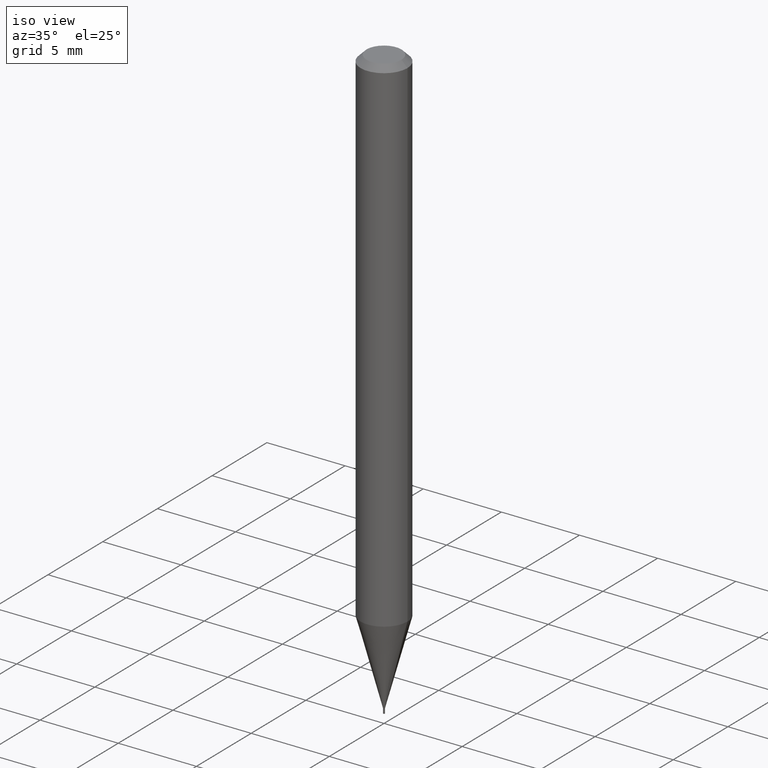
[diagram: clean part render]
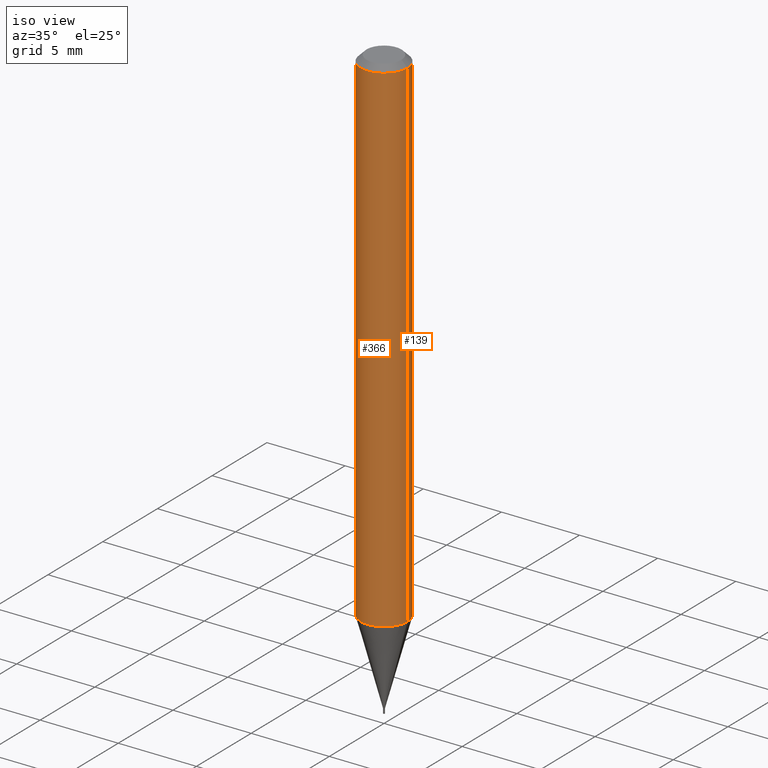
[diagram: same view with one multi-face feature highlighted, each face labeled with its STEP entity id]
A machine part, iso view. The highlighted faces form ONE feature: a constant-radius fillet chain: 2 tangent blend faces with common blend radius 1.4999 mm. The faces share edges in the B-rep.
Their STEP definitions:
[1] entity #139 (Cylinder):
#2 = VERTEX_POINT ( 'NONE', #210 ) ;
#25 = VERTEX_POINT ( 'NONE', #73 ) ;
#26 = ORIENTED_EDGE ( 'NONE', *, *, #120, .T. ) ;
#31 = LINE ( 'NONE', #425, #181 ) ;
#46 = CARTESIAN_POINT ( 'NONE',  ( -0.05904999999999999138, -4.032412016661256673E-15, -1.275099898887817274 ) ) ;
#65 = EDGE_CURVE ( 'NONE', #25, #172, #396, .T. ) ;
#73 = CARTESIAN_POINT ( 'NONE',  ( 0.05904999999999999138, -4.864331448244970298E-15, -1.275099898887817274 ) ) ;
#108 = DIRECTION ( 'NONE',  ( -2.445468806185136877E-29, 3.491481338843145188E-15, 1.000000000000000000 ) ) ;
#119 = CARTESIAN_POINT ( 'NONE',  ( 0.05904999999999999832, -4.647161662000212105E-16, -0.01499999999999999944 ) ) ;
#120 = EDGE_CURVE ( 'NONE', #454, #2, #31, .T. ) ;
#139 = ADVANCED_FACE ( 'NONE', ( #242 ), #225, .T. ) ;
#153 = DIRECTION ( 'NONE',  ( -2.445468806185136877E-29, 3.491481338843145188E-15, 1.000000000000000000 ) ) ;
#158 = CIRCLE ( 'NONE', #248, 0.05904999999999999832 ) ;
#159 = DIRECTION ( 'NONE',  ( 1.000000000000000000, -6.982962677686273021E-15, 0.000000000000000000 ) ) ;
#172 = VERTEX_POINT ( 'NONE', #119 ) ;
#181 = VECTOR ( 'NONE', #153, 39.37007874015748143 ) ;
#183 = DIRECTION ( 'NONE',  ( 1.000000000000000000, -6.982962677686266711E-15, 0.000000000000000000 ) ) ;
#189 = CARTESIAN_POINT ( 'NONE',  ( 0.000000000000000000, 0.000000000000000000, 0.000000000000000000 ) ) ;
#190 = CARTESIAN_POINT ( 'NONE',  ( 3.668203209277705088E-31, -5.237222008264718399E-17, -0.01499999999999999944 ) ) ;
#208 = CARTESIAN_POINT ( 'NONE',  ( 0.05904999999999999832, -4.123439461173740327E-16, 2.879382386107500220E-30 ) ) ;
#210 = CARTESIAN_POINT ( 'NONE',  ( -0.05904999999999999832, -1.832604375638782327E-15, -0.01499999999999999944 ) ) ;
#213 = AXIS2_PLACEMENT_3D ( 'NONE', #189, #218, #362 ) ;
#218 = DIRECTION ( 'NONE',  ( -2.445468806185136597E-29, 3.491481338843145583E-15, 1.000000000000000000 ) ) ;
#225 = CYLINDRICAL_SURFACE ( 'NONE', #213, 0.05904999999999999832 ) ;
#242 = FACE_OUTER_BOUND ( 'NONE', #403, .T. ) ;
#248 = AXIS2_PLACEMENT_3D ( 'NONE', #258, #400, #159 ) ;
#254 = VECTOR ( 'NONE', #108, 39.37007874015748143 ) ;
#258 = CARTESIAN_POINT ( 'NONE',  ( 3.118217027499978944E-29, -4.451987502127596166E-15, -1.275099898887817274 ) ) ;
#267 = ORIENTED_EDGE ( 'NONE', *, *, #401, .F. ) ;
#292 = ORIENTED_EDGE ( 'NONE', *, *, #65, .F. ) ;
#336 = AXIS2_PLACEMENT_3D ( 'NONE', #190, #360, #183 ) ;
#360 = DIRECTION ( 'NONE',  ( -2.445468806185136597E-29, 3.491481338843145583E-15, 1.000000000000000000 ) ) ;
#362 = DIRECTION ( 'NONE',  ( 1.000000000000000000, -6.982962677686266711E-15, 4.876176775795936353E-29 ) ) ;
#381 = ORIENTED_EDGE ( 'NONE', *, *, #466, .T. ) ;
#396 = LINE ( 'NONE', #208, #254 ) ;
#400 = DIRECTION ( 'NONE',  ( -2.445468806185136597E-29, 3.491481338843145583E-15, 1.000000000000000000 ) ) ;
#401 = EDGE_CURVE ( 'NONE', #172, #2, #461, .T. ) ;
#403 = EDGE_LOOP ( 'NONE', ( #381, #26, #267, #292 ) ) ;
#425 = CARTESIAN_POINT ( 'NONE',  ( -0.05904999999999999832, 4.195754854663391478E-16, -2.904631170795521892E-30 ) ) ;
#454 = VERTEX_POINT ( 'NONE', #46 ) ;
#461 = CIRCLE ( 'NONE', #336, 0.05904999999999999832 ) ;
#466 = EDGE_CURVE ( 'NONE', #25, #454, #158, .T. ) ;
[2] entity #366 (Cylinder):
#2 = VERTEX_POINT ( 'NONE', #210 ) ;
#6 = DIRECTION ( 'NONE',  ( -2.445468806185136597E-29, 3.491481338843145583E-15, 1.000000000000000000 ) ) ;
#18 = EDGE_CURVE ( 'NONE', #2, #172, #332, .T. ) ;
#25 = VERTEX_POINT ( 'NONE', #73 ) ;
#29 = EDGE_CURVE ( 'NONE', #454, #25, #300, .T. ) ;
#31 = LINE ( 'NONE', #425, #181 ) ;
#46 = CARTESIAN_POINT ( 'NONE',  ( -0.05904999999999999138, -4.032412016661256673E-15, -1.275099898887817274 ) ) ;
#48 = AXIS2_PLACEMENT_3D ( 'NONE', #320, #145, #142 ) ;
#65 = EDGE_CURVE ( 'NONE', #25, #172, #396, .T. ) ;
#73 = CARTESIAN_POINT ( 'NONE',  ( 0.05904999999999999138, -4.864331448244970298E-15, -1.275099898887817274 ) ) ;
#82 = AXIS2_PLACEMENT_3D ( 'NONE', #215, #6, #217 ) ;
#108 = DIRECTION ( 'NONE',  ( -2.445468806185136877E-29, 3.491481338843145188E-15, 1.000000000000000000 ) ) ;
#112 = DIRECTION ( 'NONE',  ( -2.445468806185136597E-29, 3.491481338843145583E-15, 1.000000000000000000 ) ) ;
#119 = CARTESIAN_POINT ( 'NONE',  ( 0.05904999999999999832, -4.647161662000212105E-16, -0.01499999999999999944 ) ) ;
#120 = EDGE_CURVE ( 'NONE', #454, #2, #31, .T. ) ;
#130 = ORIENTED_EDGE ( 'NONE', *, *, #29, .T. ) ;
#142 = DIRECTION ( 'NONE',  ( 1.000000000000000000, -6.982962677686266711E-15, 0.000000000000000000 ) ) ;
#145 = DIRECTION ( 'NONE',  ( -2.445468806185136597E-29, 3.491481338843145583E-15, 1.000000000000000000 ) ) ;
#150 = ORIENTED_EDGE ( 'NONE', *, *, #120, .F. ) ;
#153 = DIRECTION ( 'NONE',  ( -2.445468806185136877E-29, 3.491481338843145188E-15, 1.000000000000000000 ) ) ;
#172 = VERTEX_POINT ( 'NONE', #119 ) ;
#181 = VECTOR ( 'NONE', #153, 39.37007874015748143 ) ;
#182 = CARTESIAN_POINT ( 'NONE',  ( 3.118217027499978944E-29, -4.451987502127596166E-15, -1.275099898887817274 ) ) ;
#208 = CARTESIAN_POINT ( 'NONE',  ( 0.05904999999999999832, -4.123439461173740327E-16, 2.879382386107500220E-30 ) ) ;
#210 = CARTESIAN_POINT ( 'NONE',  ( -0.05904999999999999832, -1.832604375638782327E-15, -0.01499999999999999944 ) ) ;
#215 = CARTESIAN_POINT ( 'NONE',  ( 0.000000000000000000, 0.000000000000000000, 0.000000000000000000 ) ) ;
#217 = DIRECTION ( 'NONE',  ( 1.000000000000000000, -6.982962677686266711E-15, 4.876176775795936353E-29 ) ) ;
#228 = ORIENTED_EDGE ( 'NONE', *, *, #18, .F. ) ;
#254 = VECTOR ( 'NONE', #108, 39.37007874015748143 ) ;
#284 = CYLINDRICAL_SURFACE ( 'NONE', #82, 0.05904999999999999832 ) ;
#300 = CIRCLE ( 'NONE', #369, 0.05904999999999999832 ) ;
#304 = EDGE_LOOP ( 'NONE', ( #150, #130, #337, #228 ) ) ;
#320 = CARTESIAN_POINT ( 'NONE',  ( 3.668203209277705088E-31, -5.237222008264718399E-17, -0.01499999999999999944 ) ) ;
#332 = CIRCLE ( 'NONE', #48, 0.05904999999999999832 ) ;
#337 = ORIENTED_EDGE ( 'NONE', *, *, #65, .T. ) ;
#353 = DIRECTION ( 'NONE',  ( 1.000000000000000000, -6.982962677686273021E-15, 0.000000000000000000 ) ) ;
#363 = FACE_OUTER_BOUND ( 'NONE', #304, .T. ) ;
#366 = ADVANCED_FACE ( 'NONE', ( #363 ), #284, .T. ) ;
#369 = AXIS2_PLACEMENT_3D ( 'NONE', #182, #112, #353 ) ;
#396 = LINE ( 'NONE', #208, #254 ) ;
#425 = CARTESIAN_POINT ( 'NONE',  ( -0.05904999999999999832, 4.195754854663391478E-16, -2.904631170795521892E-30 ) ) ;
#454 = VERTEX_POINT ( 'NONE', #46 ) ;